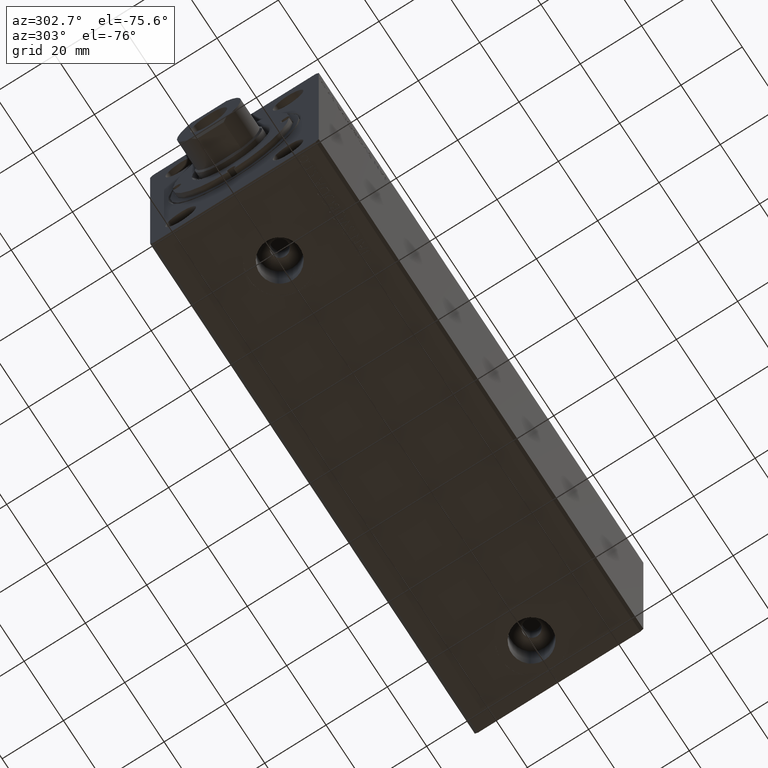
[diagram: clean part render]
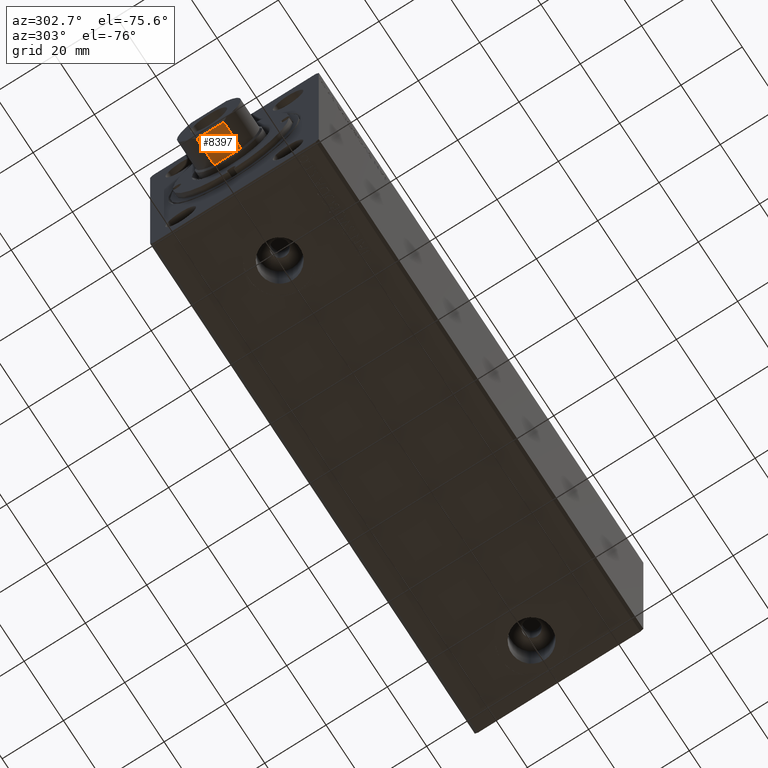
[diagram: same view with one face highlighted and labeled with its STEP entity id]
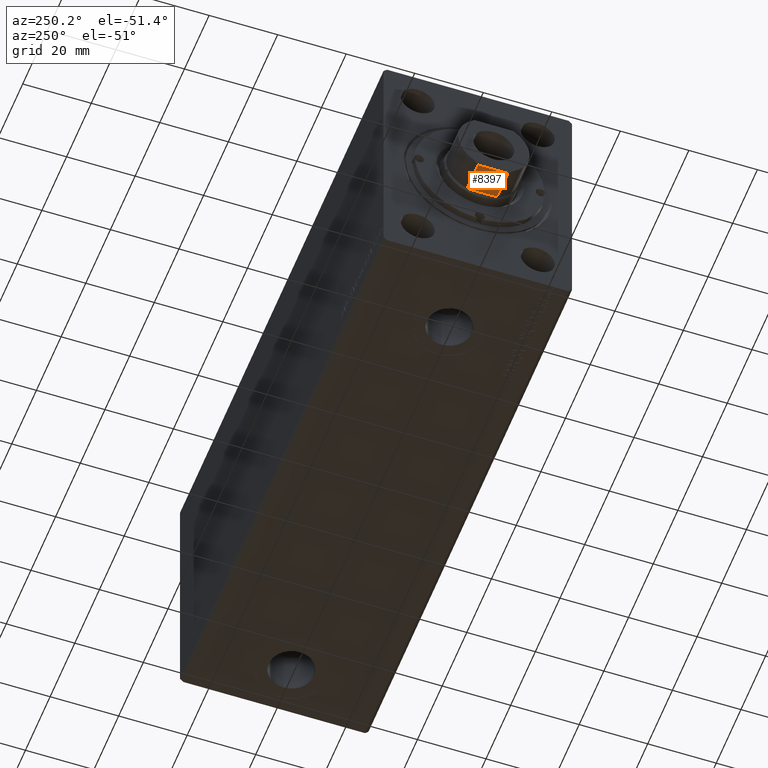
[diagram: same view with one face highlighted and labeled with its STEP entity id]
A machine part, auxiliary view. The second image highlights one B-rep face of the part: STEP entity #8397.
A second angle (auxiliary view) of the same face is appended — the face is thin or edge-on in the first view.
In plain terms, the highlighted planar face has unit normal (0, -0, 1).
Its self-contained STEP definition (entity closure, byte-faithful):
#581 = AXIS2_PLACEMENT_3D ( 'NONE', #10805, #38277, #34933 ) ;
#1212 = CARTESIAN_POINT ( 'NONE',  ( 9.500000000000000000, 4.377396486497401540, 138.4999999999999432 ) ) ;
#8357 = DIRECTION ( 'NONE',  ( -0.000000000000000000, -1.817376075630682537E-16, 1.000000000000000000 ) ) ;
#8397 = ADVANCED_FACE ( 'NONE', ( #14806 ), #21099, .F. ) ;
#9011 = CARTESIAN_POINT ( 'NONE',  ( 9.500000000000000000, -59.24314306314278156, 147.2899999999999636 ) ) ;
#10805 = CARTESIAN_POINT ( 'NONE',  ( 9.500000000000000000, -59.24314306314275314, 9.700737579751677941 ) ) ;
#11709 = CARTESIAN_POINT ( 'NONE',  ( 9.500000000000000000, -4.377396486497453942, 148.0000000000000000 ) ) ;
#12265 = CARTESIAN_POINT ( 'NONE',  ( 9.500000000000000000, -4.377396486497453942, 147.2899999999999636 ) ) ;
#12429 = LINE ( 'NONE', #19591, #39585 ) ;
#12825 = VECTOR ( 'NONE', #14348, 1000.000000000000000 ) ;
#13911 = LINE ( 'NONE', #17271, #12825 ) ;
#14348 = DIRECTION ( 'NONE',  ( 0.000000000000000000, 1.817376075630682537E-16, -1.000000000000000000 ) ) ;
#14806 = FACE_OUTER_BOUND ( 'NONE', #35477, .T. ) ;
#15487 = VERTEX_POINT ( 'NONE', #12265 ) ;
#15496 = ORIENTED_EDGE ( 'NONE', *, *, #42169, .F. ) ;
#15847 = CARTESIAN_POINT ( 'NONE',  ( 9.500000000000000000, 4.377396486497399763, 147.2899999999999636 ) ) ;
#15947 = VECTOR ( 'NONE', #8357, 1000.000000000000000 ) ;
#17271 = CARTESIAN_POINT ( 'NONE',  ( 9.500000000000000000, 4.377396486497399763, 148.0000000000000000 ) ) ;
#18366 = VECTOR ( 'NONE', #22648, 1000.000000000000000 ) ;
#19591 = CARTESIAN_POINT ( 'NONE',  ( 9.500000000000000000, -59.24314306314275314, 138.4999999999999432 ) ) ;
#21099 = PLANE ( 'NONE',  #581 ) ;
#21469 = EDGE_CURVE ( 'NONE', #32220, #36183, #13911, .T. ) ;
#21782 = LINE ( 'NONE', #11709, #15947 ) ;
#21949 = VERTEX_POINT ( 'NONE', #41706 ) ;
#22648 = DIRECTION ( 'NONE',  ( 0.000000000000000000, -1.000000000000000000, -1.817376075630682537E-16 ) ) ;
#23981 = EDGE_CURVE ( 'NONE', #32220, #15487, #39614, .T. ) ;
#32220 = VERTEX_POINT ( 'NONE', #15847 ) ;
#34933 = DIRECTION ( 'NONE',  ( 0.000000000000000000, 0.000000000000000000, 1.000000000000000000 ) ) ;
#35477 = EDGE_LOOP ( 'NONE', ( #35679, #37899, #15496, #40158 ) ) ;
#35679 = ORIENTED_EDGE ( 'NONE', *, *, #21469, .F. ) ;
#36183 = VERTEX_POINT ( 'NONE', #1212 ) ;
#36340 = DIRECTION ( 'NONE',  ( 0.000000000000000000, 1.000000000000000000, -0.000000000000000000 ) ) ;
#37899 = ORIENTED_EDGE ( 'NONE', *, *, #23981, .T. ) ;
#38277 = DIRECTION ( 'NONE',  ( -1.000000000000000000, 0.000000000000000000, 0.000000000000000000 ) ) ;
#39585 = VECTOR ( 'NONE', #36340, 1000.000000000000000 ) ;
#39614 = LINE ( 'NONE', #9011, #18366 ) ;
#40158 = ORIENTED_EDGE ( 'NONE', *, *, #43678, .T. ) ;
#41706 = CARTESIAN_POINT ( 'NONE',  ( 9.500000000000000000, -4.377396486497452166, 138.4999999999999432 ) ) ;
#42169 = EDGE_CURVE ( 'NONE', #21949, #15487, #21782, .T. ) ;
#43678 = EDGE_CURVE ( 'NONE', #21949, #36183, #12429, .T. ) ;